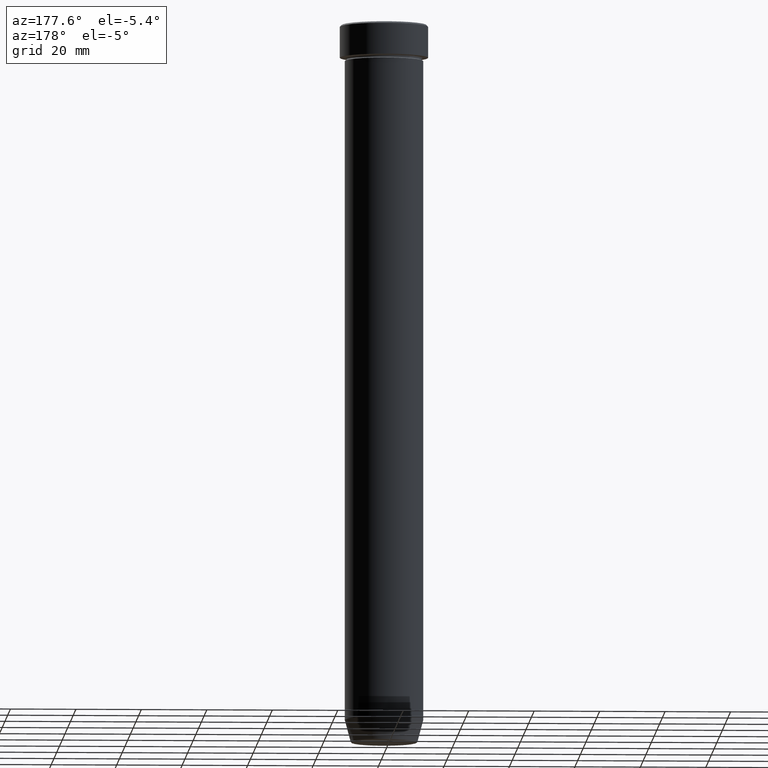
[diagram: clean part render]
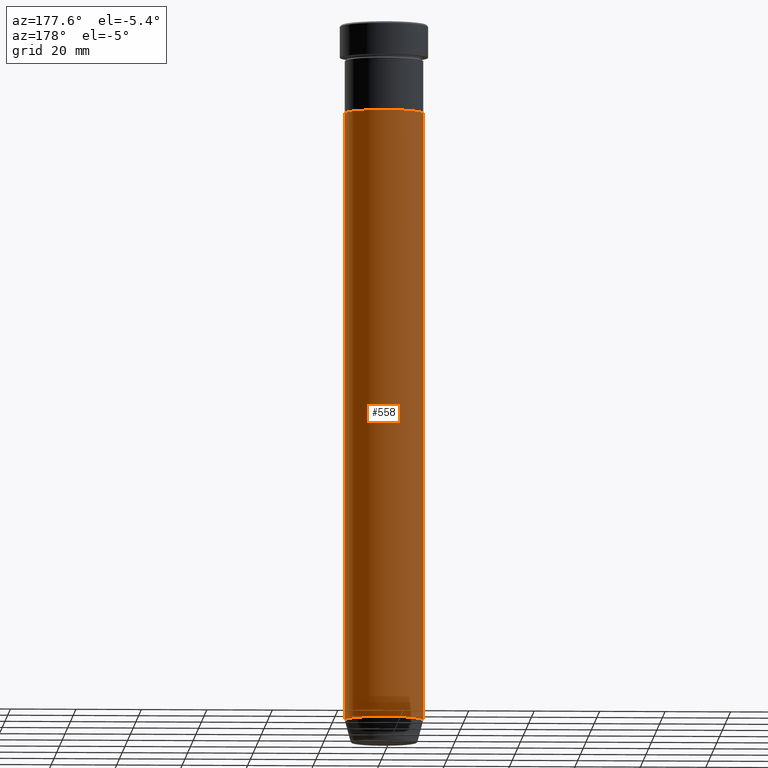
[diagram: same view with one face highlighted and labeled with its STEP entity id]
A machine part, auxiliary view. The second image highlights one B-rep face of the part: STEP entity #558.
In plain terms, the highlighted cylindrical surface (partial cylindrical patch) has radius 12 mm, axis along (-0, -0, 1).
Its self-contained STEP definition (entity closure, byte-faithful):
#28 = CARTESIAN_POINT ( 'NONE',  ( 0.000000000000000000, 0.000000000000000000, 0.000000000000000000 ) ) ;
#34 = VERTEX_POINT ( 'NONE', #163 ) ;
#51 = EDGE_CURVE ( 'NONE', #453, #457, #392, .T. ) ;
#58 = ORIENTED_EDGE ( 'NONE', *, *, #51, .F. ) ;
#77 = ORIENTED_EDGE ( 'NONE', *, *, #459, .T. ) ;
#156 = VECTOR ( 'NONE', #593, 1000.000000000000000 ) ;
#163 = CARTESIAN_POINT ( 'NONE',  ( 12.00000000000000000, 0.000000000000000000, -213.0000000000000284 ) ) ;
#171 = ORIENTED_EDGE ( 'NONE', *, *, #372, .F. ) ;
#187 = VERTEX_POINT ( 'NONE', #578 ) ;
#189 = CIRCLE ( 'NONE', #307, 12.00000000000000000 ) ;
#217 = CARTESIAN_POINT ( 'NONE',  ( 0.000000000000000000, 0.000000000000000000, -27.00000000000000000 ) ) ;
#234 = AXIS2_PLACEMENT_3D ( 'NONE', #217, #347, #402 ) ;
#245 = CARTESIAN_POINT ( 'NONE',  ( 0.000000000000000000, 0.000000000000000000, -213.0000000000000284 ) ) ;
#252 = ORIENTED_EDGE ( 'NONE', *, *, #325, .T. ) ;
#274 = LINE ( 'NONE', #554, #436 ) ;
#275 = EDGE_LOOP ( 'NONE', ( #77, #252, #58, #171 ) ) ;
#307 = AXIS2_PLACEMENT_3D ( 'NONE', #245, #475, #327 ) ;
#325 = EDGE_CURVE ( 'NONE', #187, #457, #274, .T. ) ;
#327 = DIRECTION ( 'NONE',  ( 1.000000000000000000, 0.000000000000000000, 0.000000000000000000 ) ) ;
#343 = CYLINDRICAL_SURFACE ( 'NONE', #576, 12.00000000000000000 ) ;
#347 = DIRECTION ( 'NONE',  ( -0.000000000000000000, -0.000000000000000000, 1.000000000000000000 ) ) ;
#354 = LINE ( 'NONE', #503, #156 ) ;
#359 = DIRECTION ( 'NONE',  ( -0.000000000000000000, -0.000000000000000000, 1.000000000000000000 ) ) ;
#371 = CARTESIAN_POINT ( 'NONE',  ( -12.00000000000000000, 1.469576158976823947E-15, -27.00000000000000000 ) ) ;
#372 = EDGE_CURVE ( 'NONE', #34, #453, #354, .T. ) ;
#392 = CIRCLE ( 'NONE', #234, 12.00000000000000000 ) ;
#402 = DIRECTION ( 'NONE',  ( 1.000000000000000000, 0.000000000000000000, 0.000000000000000000 ) ) ;
#434 = FACE_OUTER_BOUND ( 'NONE', #275, .T. ) ;
#436 = VECTOR ( 'NONE', #359, 1000.000000000000000 ) ;
#453 = VERTEX_POINT ( 'NONE', #479 ) ;
#457 = VERTEX_POINT ( 'NONE', #371 ) ;
#459 = EDGE_CURVE ( 'NONE', #34, #187, #189, .T. ) ;
#475 = DIRECTION ( 'NONE',  ( -0.000000000000000000, -0.000000000000000000, 1.000000000000000000 ) ) ;
#479 = CARTESIAN_POINT ( 'NONE',  ( 12.00000000000000000, 0.000000000000000000, -27.00000000000000000 ) ) ;
#487 = DIRECTION ( 'NONE',  ( 1.000000000000000000, 0.000000000000000000, 0.000000000000000000 ) ) ;
#491 = DIRECTION ( 'NONE',  ( -0.000000000000000000, -0.000000000000000000, 1.000000000000000000 ) ) ;
#503 = CARTESIAN_POINT ( 'NONE',  ( 12.00000000000000000, 0.000000000000000000, 0.000000000000000000 ) ) ;
#554 = CARTESIAN_POINT ( 'NONE',  ( -12.00000000000000000, 1.469576158976823947E-15, 0.000000000000000000 ) ) ;
#558 = ADVANCED_FACE ( 'NONE', ( #434 ), #343, .T. ) ;
#576 = AXIS2_PLACEMENT_3D ( 'NONE', #28, #491, #487 ) ;
#578 = CARTESIAN_POINT ( 'NONE',  ( -12.00000000000000000, 1.469576158976823947E-15, -213.0000000000000284 ) ) ;
#593 = DIRECTION ( 'NONE',  ( -0.000000000000000000, -0.000000000000000000, 1.000000000000000000 ) ) ;